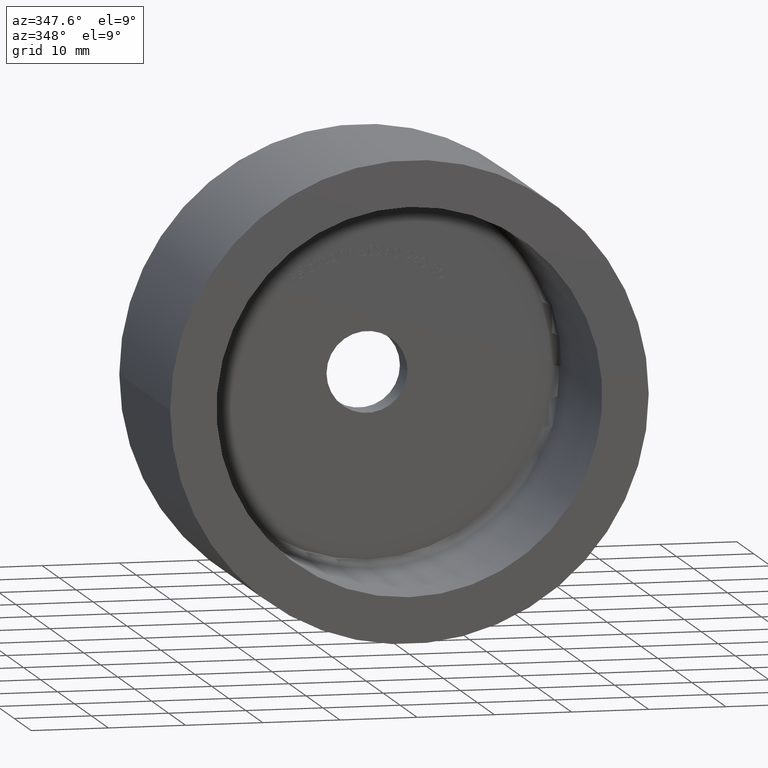
[diagram: clean part render]
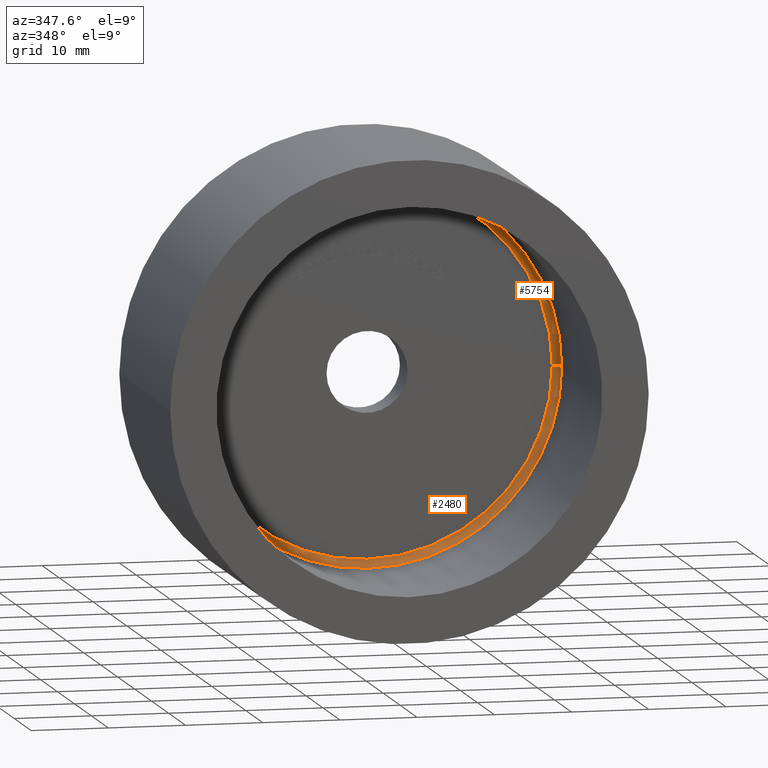
[diagram: same view with one multi-face feature highlighted, each face labeled with its STEP entity id]
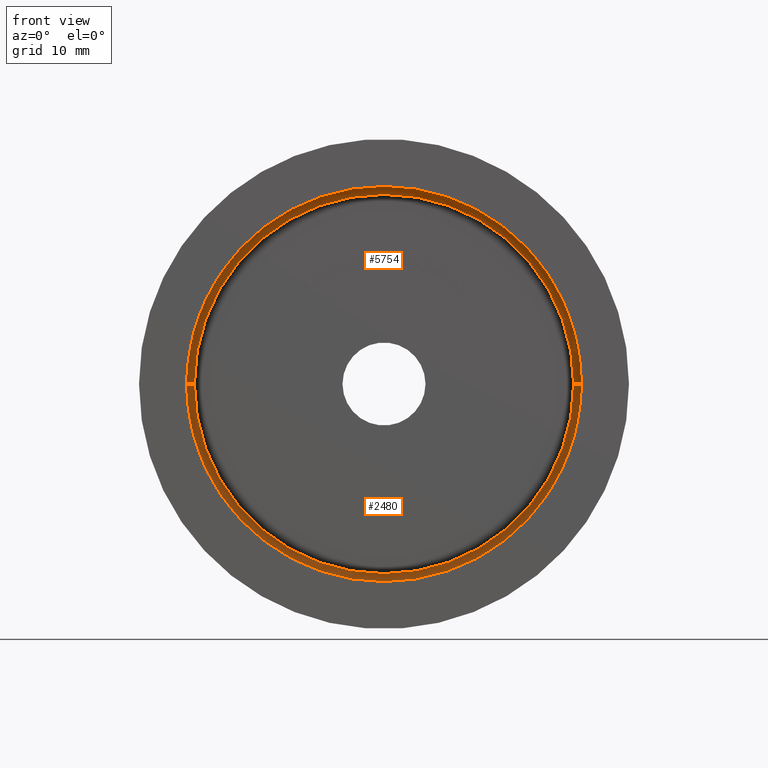
[diagram: same view with one multi-face feature highlighted, each face labeled with its STEP entity id]
A machine part, auxiliary view. The highlighted faces form ONE feature: a constant-radius fillet chain: 2 tangent blend faces with common blend radius 1 mm. The faces share edges in the B-rep.
A second angle (front view) of the same feature is appended — it is thin or edge-on in the first view.
Their STEP definitions:
[1] entity #5754 (Torus):
#124 = AXIS2_PLACEMENT_3D ( 'NONE', #13454, #1593, #2712 ) ;
#485 = ORIENTED_EDGE ( 'NONE', *, *, #7824, .F. ) ;
#504 = DIRECTION ( 'NONE',  ( 1.000000000000000000, 0.000000000000000000, 1.224646799147353454E-16 ) ) ;
#619 = CARTESIAN_POINT ( 'NONE',  ( -1.156482317317872958E-16, 24.99999999999999289, 0.000000000000000000 ) ) ;
#951 = EDGE_CURVE ( 'NONE', #11090, #3136, #10096, .T. ) ;
#1366 = DIRECTION ( 'NONE',  ( -1.000000000000000000, -1.156482317317871725E-16, 0.000000000000000000 ) ) ;
#1511 = TOROIDAL_SURFACE ( 'NONE', #10771, 24.00000000000000000, 1.000000000000000000 ) ;
#1593 = DIRECTION ( 'NONE',  ( -1.156482317317871725E-16, 1.000000000000000000, -0.000000000000000000 ) ) ;
#1673 = CIRCLE ( 'NONE', #124, 25.00000000000000000 ) ;
#1678 = DIRECTION ( 'NONE',  ( -1.000000000000000000, -1.445602896647339163E-16, 0.000000000000000000 ) ) ;
#1864 = DIRECTION ( 'NONE',  ( -1.000000000000000000, 0.000000000000000000, 0.000000000000000000 ) ) ;
#2566 = EDGE_CURVE ( 'NONE', #11090, #5408, #12523, .T. ) ;
#2712 = DIRECTION ( 'NONE',  ( -1.000000000000000000, -1.387778780781445676E-16, 0.000000000000000000 ) ) ;
#2962 = CARTESIAN_POINT ( 'NONE',  ( -24.00000000000000000, 23.99999999999998934, 0.000000000000000000 ) ) ;
#3136 = VERTEX_POINT ( 'NONE', #10441 ) ;
#3141 = EDGE_LOOP ( 'NONE', ( #485, #14686, #11789, #3436, #11479 ) ) ;
#3436 = ORIENTED_EDGE ( 'NONE', *, *, #2566, .T. ) ;
#3948 = FACE_OUTER_BOUND ( 'NONE', #3141, .T. ) ;
#4022 = CARTESIAN_POINT ( 'NONE',  ( -24.00000000000000000, 24.99999999999998934, 0.000000000000000000 ) ) ;
#4068 = DIRECTION ( 'NONE',  ( 1.156482317317871725E-16, -1.000000000000000000, 0.000000000000000000 ) ) ;
#4641 = CIRCLE ( 'NONE', #12389, 1.000000000000000888 ) ;
#5408 = VERTEX_POINT ( 'NONE', #4022 ) ;
#5590 = CARTESIAN_POINT ( 'NONE',  ( 0.000000000000000000, 23.99999999999999289, 0.000000000000000000 ) ) ;
#5641 = AXIS2_PLACEMENT_3D ( 'NONE', #2962, #8972, #1864 ) ;
#5754 = ADVANCED_FACE ( 'NONE', ( #3948 ), #1511, .F. ) ;
#5932 = CIRCLE ( 'NONE', #13970, 24.00000000000000000 ) ;
#6766 = DIRECTION ( 'NONE',  ( -1.000000000000000000, -1.387778780781445676E-16, 0.000000000000000000 ) ) ;
#7276 = EDGE_CURVE ( 'NONE', #8641, #5408, #5932, .T. ) ;
#7601 = CARTESIAN_POINT ( 'NONE',  ( 24.00000000000000000, 23.99999999999999645, 2.939152317953647894E-15 ) ) ;
#7824 = EDGE_CURVE ( 'NONE', #14322, #8641, #4641, .T. ) ;
#8126 = EDGE_CURVE ( 'NONE', #3136, #14322, #1673, .T. ) ;
#8557 = CARTESIAN_POINT ( 'NONE',  ( 0.000000000000000000, 23.99999999999999289, 0.000000000000000000 ) ) ;
#8641 = VERTEX_POINT ( 'NONE', #14835 ) ;
#8972 = DIRECTION ( 'NONE',  ( 0.000000000000000000, -0.000000000000000000, -1.000000000000000000 ) ) ;
#9211 = DIRECTION ( 'NONE',  ( -1.156482317317871725E-16, 1.000000000000000000, -0.000000000000000000 ) ) ;
#10096 = CIRCLE ( 'NONE', #14753, 25.00000000000000000 ) ;
#10441 = CARTESIAN_POINT ( 'NONE',  ( 3.061616997868382648E-15, 23.99999999999999289, 25.00000000000000000 ) ) ;
#10771 = AXIS2_PLACEMENT_3D ( 'NONE', #8557, #10941, #1366 ) ;
#10941 = DIRECTION ( 'NONE',  ( -1.156482317317871725E-16, 1.000000000000000000, -0.000000000000000000 ) ) ;
#11090 = VERTEX_POINT ( 'NONE', #11712 ) ;
#11479 = ORIENTED_EDGE ( 'NONE', *, *, #7276, .F. ) ;
#11712 = CARTESIAN_POINT ( 'NONE',  ( -25.00000000000000000, 23.99999999999998934, 0.000000000000000000 ) ) ;
#11789 = ORIENTED_EDGE ( 'NONE', *, *, #951, .F. ) ;
#12389 = AXIS2_PLACEMENT_3D ( 'NONE', #7601, #13563, #504 ) ;
#12523 = CIRCLE ( 'NONE', #5641, 1.000000000000000888 ) ;
#13454 = CARTESIAN_POINT ( 'NONE',  ( 0.000000000000000000, 23.99999999999999289, 0.000000000000000000 ) ) ;
#13563 = DIRECTION ( 'NONE',  ( -1.224646799147353207E-16, -1.416282368173845317E-32, 1.000000000000000000 ) ) ;
#13914 = CARTESIAN_POINT ( 'NONE',  ( 25.00000000000000000, 23.99999999999999645, 3.061616997868383043E-15 ) ) ;
#13970 = AXIS2_PLACEMENT_3D ( 'NONE', #619, #4068, #1678 ) ;
#14322 = VERTEX_POINT ( 'NONE', #13914 ) ;
#14686 = ORIENTED_EDGE ( 'NONE', *, *, #8126, .F. ) ;
#14753 = AXIS2_PLACEMENT_3D ( 'NONE', #5590, #9211, #6766 ) ;
#14835 = CARTESIAN_POINT ( 'NONE',  ( 24.00000000000000000, 24.99999999999999645, 3.000384657911015469E-15 ) ) ;
[2] entity #2480 (Torus):
#297 = ORIENTED_EDGE ( 'NONE', *, *, #2566, .F. ) ;
#504 = DIRECTION ( 'NONE',  ( 1.000000000000000000, 0.000000000000000000, 1.224646799147353454E-16 ) ) ;
#711 = AXIS2_PLACEMENT_3D ( 'NONE', #8021, #2128, #6695 ) ;
#1864 = DIRECTION ( 'NONE',  ( -1.000000000000000000, 0.000000000000000000, 0.000000000000000000 ) ) ;
#2128 = DIRECTION ( 'NONE',  ( -1.156482317317871725E-16, 1.000000000000000000, -0.000000000000000000 ) ) ;
#2328 = AXIS2_PLACEMENT_3D ( 'NONE', #7927, #10422, #13830 ) ;
#2480 = ADVANCED_FACE ( 'NONE', ( #2855 ), #9530, .F. ) ;
#2566 = EDGE_CURVE ( 'NONE', #11090, #5408, #12523, .T. ) ;
#2625 = DIRECTION ( 'NONE',  ( -1.000000000000000000, -1.156482317317871725E-16, 0.000000000000000000 ) ) ;
#2855 = FACE_OUTER_BOUND ( 'NONE', #9614, .T. ) ;
#2962 = CARTESIAN_POINT ( 'NONE',  ( -24.00000000000000000, 23.99999999999998934, 0.000000000000000000 ) ) ;
#3855 = EDGE_CURVE ( 'NONE', #14322, #9773, #7647, .T. ) ;
#3879 = EDGE_CURVE ( 'NONE', #5408, #8641, #7628, .T. ) ;
#3891 = ORIENTED_EDGE ( 'NONE', *, *, #3879, .F. ) ;
#4022 = CARTESIAN_POINT ( 'NONE',  ( -24.00000000000000000, 24.99999999999998934, 0.000000000000000000 ) ) ;
#4641 = CIRCLE ( 'NONE', #12389, 1.000000000000000888 ) ;
#4936 = CARTESIAN_POINT ( 'NONE',  ( -4.012354050806742528E-31, 23.99999999999999289, -25.00000000000000000 ) ) ;
#5408 = VERTEX_POINT ( 'NONE', #4022 ) ;
#5641 = AXIS2_PLACEMENT_3D ( 'NONE', #2962, #8972, #1864 ) ;
#6695 = DIRECTION ( 'NONE',  ( -1.000000000000000000, -1.387778780781445676E-16, 0.000000000000000000 ) ) ;
#7271 = DIRECTION ( 'NONE',  ( -1.156482317317871725E-16, 1.000000000000000000, -0.000000000000000000 ) ) ;
#7601 = CARTESIAN_POINT ( 'NONE',  ( 24.00000000000000000, 23.99999999999999645, 2.939152317953647894E-15 ) ) ;
#7628 = CIRCLE ( 'NONE', #2328, 24.00000000000000000 ) ;
#7633 = DIRECTION ( 'NONE',  ( -1.000000000000000000, -1.387778780781445676E-16, 0.000000000000000000 ) ) ;
#7647 = CIRCLE ( 'NONE', #711, 25.00000000000000000 ) ;
#7824 = EDGE_CURVE ( 'NONE', #14322, #8641, #4641, .T. ) ;
#7884 = ORIENTED_EDGE ( 'NONE', *, *, #7824, .T. ) ;
#7927 = CARTESIAN_POINT ( 'NONE',  ( -1.156482317317872958E-16, 24.99999999999999289, 0.000000000000000000 ) ) ;
#8021 = CARTESIAN_POINT ( 'NONE',  ( 0.000000000000000000, 23.99999999999999289, 0.000000000000000000 ) ) ;
#8641 = VERTEX_POINT ( 'NONE', #14835 ) ;
#8729 = ORIENTED_EDGE ( 'NONE', *, *, #11878, .F. ) ;
#8972 = DIRECTION ( 'NONE',  ( 0.000000000000000000, -0.000000000000000000, -1.000000000000000000 ) ) ;
#9377 = AXIS2_PLACEMENT_3D ( 'NONE', #12164, #7271, #2625 ) ;
#9530 = TOROIDAL_SURFACE ( 'NONE', #9377, 24.00000000000000000, 1.000000000000000000 ) ;
#9614 = EDGE_LOOP ( 'NONE', ( #13999, #7884, #3891, #297, #8729 ) ) ;
#9646 = CIRCLE ( 'NONE', #13002, 25.00000000000000000 ) ;
#9773 = VERTEX_POINT ( 'NONE', #4936 ) ;
#10422 = DIRECTION ( 'NONE',  ( 1.156482317317871725E-16, -1.000000000000000000, 0.000000000000000000 ) ) ;
#11090 = VERTEX_POINT ( 'NONE', #11712 ) ;
#11712 = CARTESIAN_POINT ( 'NONE',  ( -25.00000000000000000, 23.99999999999998934, 0.000000000000000000 ) ) ;
#11878 = EDGE_CURVE ( 'NONE', #9773, #11090, #9646, .T. ) ;
#12164 = CARTESIAN_POINT ( 'NONE',  ( 0.000000000000000000, 23.99999999999999289, 0.000000000000000000 ) ) ;
#12389 = AXIS2_PLACEMENT_3D ( 'NONE', #7601, #13563, #504 ) ;
#12463 = CARTESIAN_POINT ( 'NONE',  ( 0.000000000000000000, 23.99999999999999289, 0.000000000000000000 ) ) ;
#12523 = CIRCLE ( 'NONE', #5641, 1.000000000000000888 ) ;
#13002 = AXIS2_PLACEMENT_3D ( 'NONE', #12463, #14897, #7633 ) ;
#13563 = DIRECTION ( 'NONE',  ( -1.224646799147353207E-16, -1.416282368173845317E-32, 1.000000000000000000 ) ) ;
#13830 = DIRECTION ( 'NONE',  ( -1.000000000000000000, -1.445602896647339163E-16, 0.000000000000000000 ) ) ;
#13914 = CARTESIAN_POINT ( 'NONE',  ( 25.00000000000000000, 23.99999999999999645, 3.061616997868383043E-15 ) ) ;
#13999 = ORIENTED_EDGE ( 'NONE', *, *, #3855, .F. ) ;
#14322 = VERTEX_POINT ( 'NONE', #13914 ) ;
#14835 = CARTESIAN_POINT ( 'NONE',  ( 24.00000000000000000, 24.99999999999999645, 3.000384657911015469E-15 ) ) ;
#14897 = DIRECTION ( 'NONE',  ( -1.156482317317871725E-16, 1.000000000000000000, -0.000000000000000000 ) ) ;